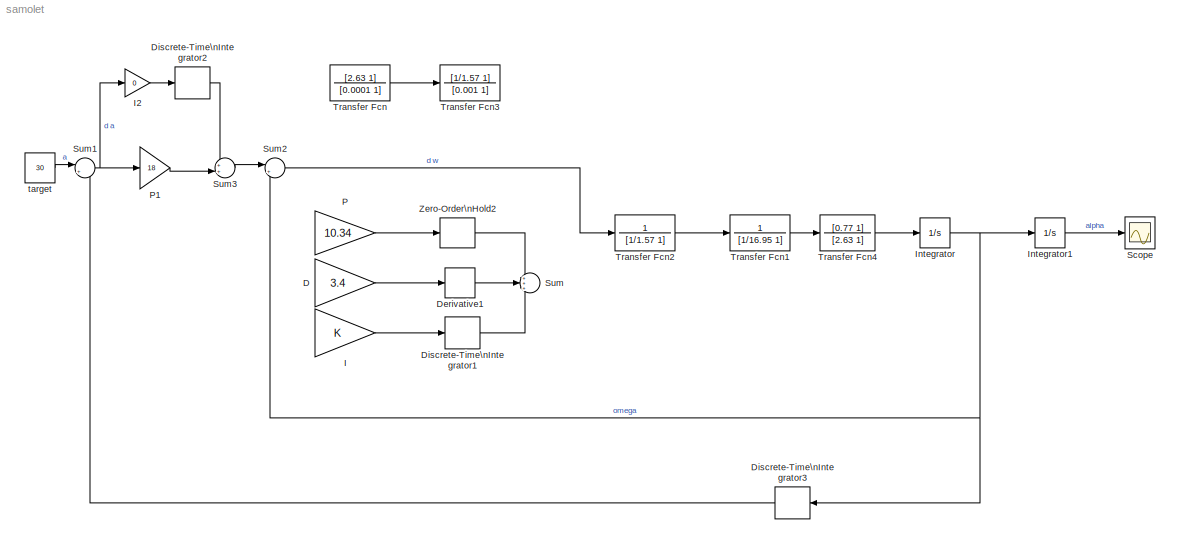
MODEL samolet
KIND model
BLOCK [Gain] D
  Gain = 3.4
  OutDataType = fixdt(1, 16)
  OutDataTypeMode = Inherit via internal rule
  OutDataTypeStr = Inherit: Inherit via internal rule
  OutScaling = 2^0
  ParamDataTypeStr = Inherit: Inherit via internal rule
  ParameterDataType = fixdt(1, 16)
  ParameterDataTypeMode = Inherit via internal rule
  ParameterScaling = 2^0
  SaturateOnIntegerOverflow = off
BLOCK [Derivative] Derivative1
BLOCK [DiscreteIntegrator] Discrete-Time\nIntegrator1
  ExternalReset = none
  ICPrevOutput = DiscIntNeverNeededParam
  ICPrevScaledInput = DiscIntNeverNeededParam
  InitialConditionSource = internal
  IntegratorMethod = Integration: Forward Euler
  OutDataType = fixdt(1, 16)
  OutScaling = 2^0
  Ports = [1, 1]
  SampleTime = 1/200
BLOCK [DiscreteIntegrator] Discrete-Time\nIntegrator2
  ExternalReset = none
  ICPrevOutput = DiscIntNeverNeededParam
  ICPrevScaledInput = DiscIntNeverNeededParam
  InitialConditionSource = internal
  IntegratorMethod = Integration: Forward Euler
  OutDataType = fixdt(1, 16)
  OutScaling = 2^0
  Ports = [1, 1]
  SampleTime = 1/200
BLOCK [DiscreteIntegrator] Discrete-Time\nIntegrator3
  ExternalReset = none
  ICPrevOutput = DiscIntNeverNeededParam
  ICPrevScaledInput = DiscIntNeverNeededParam
  InitialConditionSource = internal
  IntegratorMethod = Integration: Forward Euler
  OutDataType = fixdt(1, 16)
  OutScaling = 2^0
  Ports = [1, 1]
  SampleTime = 1/200
BLOCK [Gain] I
  OutDataType = fixdt(1, 16)
  OutDataTypeMode = Inherit via internal rule
  OutDataTypeStr = Inherit: Inherit via internal rule
  OutScaling = 2^0
  ParamDataTypeStr = Inherit: Inherit via internal rule
  ParameterDataType = fixdt(1, 16)
  ParameterDataTypeMode = Inherit via internal rule
  ParameterScaling = 2^0
  SaturateOnIntegerOverflow = off
BLOCK [Gain] I2
  Gain = 0
  OutDataType = fixdt(1, 16)
  OutDataTypeMode = Inherit via internal rule
  OutDataTypeStr = Inherit: Inherit via internal rule
  OutScaling = 2^0
  ParamDataTypeStr = Inherit: Inherit via internal rule
  ParameterDataType = fixdt(1, 16)
  ParameterDataTypeMode = Inherit via internal rule
  ParameterScaling = 2^0
  SaturateOnIntegerOverflow = off
BLOCK [Integrator] Integrator
  Ports = [1, 1]
BLOCK [Integrator] Integrator1
  Ports = [1, 1]
BLOCK [Gain] P
  Gain = 10.34
  OutDataType = fixdt(1, 16)
  OutDataTypeMode = Inherit via internal rule
  OutDataTypeStr = Inherit: Inherit via internal rule
  OutScaling = 2^0
  ParamDataTypeStr = Inherit: Inherit via internal rule
  ParameterDataType = fixdt(1, 16)
  ParameterDataTypeMode = Inherit via internal rule
  ParameterScaling = 2^0
  SaturateOnIntegerOverflow = off
BLOCK [Gain] P1
  Gain = 18
  OutDataType = fixdt(1, 16)
  OutDataTypeMode = Inherit via internal rule
  OutDataTypeStr = Inherit: Inherit via internal rule
  OutScaling = 2^0
  ParamDataTypeStr = Inherit: Inherit via internal rule
  ParameterDataType = fixdt(1, 16)
  ParameterDataTypeMode = Inherit via internal rule
  ParameterScaling = 2^0
  SaturateOnIntegerOverflow = off
BLOCK [Scope] Scope
  DataFormat = StructureWithTime
  Floating = off
  MaxDataPoints = 500000
  NumInputPorts = 1
  Ports = [1]
  SampleTime = 0
  YMax = 750000
  YMin = -2.25e+006
  ZoomMode = yonly
BLOCK [Sum] Sum
  IconShape = round
  InputSameDT = off
  Inputs = +++
  OutDataType = fixdt(1, 16)
  OutDataTypeMode = Inherit via internal rule
  OutDataTypeStr = Inherit: Inherit via internal rule
  OutScaling = 2^0
  Ports = [3, 1]
  SaturateOnIntegerOverflow = off
BLOCK [Sum] Sum1
  IconShape = round
  InputSameDT = off
  Inputs = |+-
  OutDataType = fixdt(1, 16)
  OutDataTypeMode = Inherit via internal rule
  OutDataTypeStr = Inherit: Inherit via internal rule
  OutScaling = 2^0
  Ports = [2, 1]
  SaturateOnIntegerOverflow = off
BLOCK [Sum] Sum2
  IconShape = round
  InputSameDT = off
  Inputs = |+-
  OutDataType = fixdt(1, 16)
  OutDataTypeMode = Inherit via internal rule
  OutDataTypeStr = Inherit: Inherit via internal rule
  OutScaling = 2^0
  Ports = [2, 1]
  SaturateOnIntegerOverflow = off
BLOCK [Sum] Sum3
  IconShape = round
  InputSameDT = off
  Inputs = ++|
  OutDataType = fixdt(1, 16)
  OutDataTypeMode = Inherit via internal rule
  OutDataTypeStr = Inherit: Inherit via internal rule
  OutScaling = 2^0
  Ports = [2, 1]
  SaturateOnIntegerOverflow = off
BLOCK [TransferFcn] Transfer Fcn
  Denominator = [0.0001 1]
  Numerator = [2.63 1]
BLOCK [TransferFcn] Transfer Fcn1
  Denominator = [1/16.95 1]
  Numerator = 1
BLOCK [TransferFcn] Transfer Fcn2
  Denominator = [1/1.57 1]
  Numerator = 1
BLOCK [TransferFcn] Transfer Fcn3
  Denominator = [0.001 1]
  Numerator = [1/1.57 1]
BLOCK [TransferFcn] Transfer Fcn4
  Denominator = [2.63 1]
  Numerator = [0.77 1]
BLOCK [ZeroOrderHold] Zero-Order\nHold2
  SampleTime = 1/200
BLOCK [Constant] target
  OutDataType = fixdt(1, 16)
  OutScaling = 2^0
  Value = 30
LINE D:1 -> Derivative1:1
LINE Derivative1:1 -> Sum:2
LINE Discrete-Time\nIntegrator1:1 -> Sum:3
LINE Discrete-Time\nIntegrator2:1 -> Sum3:1
LINE Discrete-Time\nIntegrator3:1 -> Sum1:2
LINE I2:1 -> Discrete-Time\nIntegrator2:1
LINE I:1 -> Discrete-Time\nIntegrator1:1
LINE Integrator1:1 -> Scope:1
NET Integrator:1 -> Discrete-Time\nIntegrator3:1, Integrator1:1, Sum2:2
LINE P1:1 -> Sum3:2
LINE P:1 -> Zero-Order\nHold2:1
NET Sum1:1 -> I2:1, P1:1
LINE Sum2:1 -> Transfer Fcn2:1
LINE Sum3:1 -> Sum2:1
LINE Transfer Fcn1:1 -> Transfer Fcn4:1
LINE Transfer Fcn2:1 -> Transfer Fcn1:1
LINE Transfer Fcn4:1 -> Integrator:1
LINE Transfer Fcn:1 -> Transfer Fcn3:1
LINE Zero-Order\nHold2:1 -> Sum:1
LINE target:1 -> Sum1:1
note: NET lines group one-source signal fan-out (src -> all destinations, sorted); 1:1 wires keep LINE
